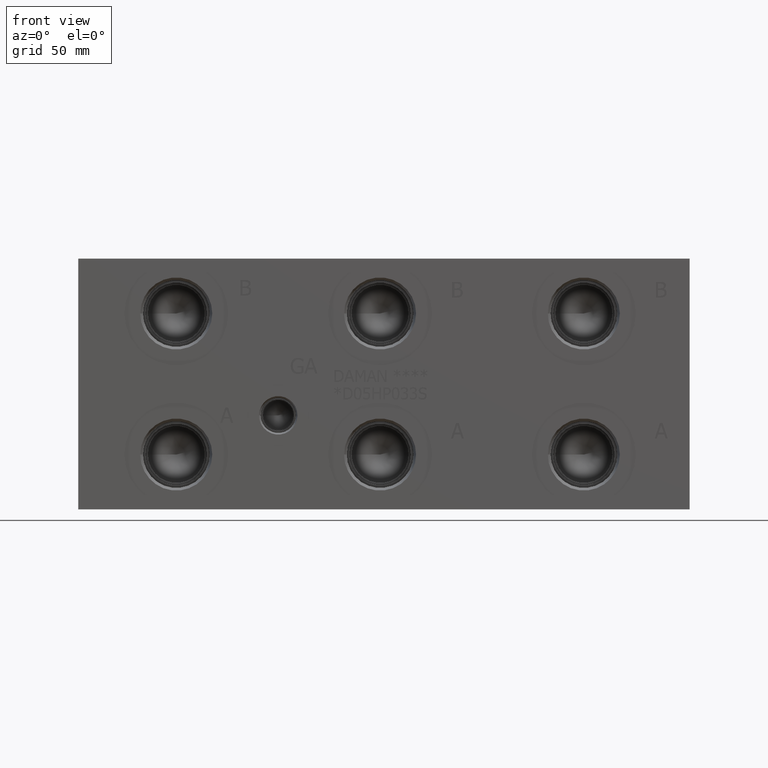
[diagram: clean part render]
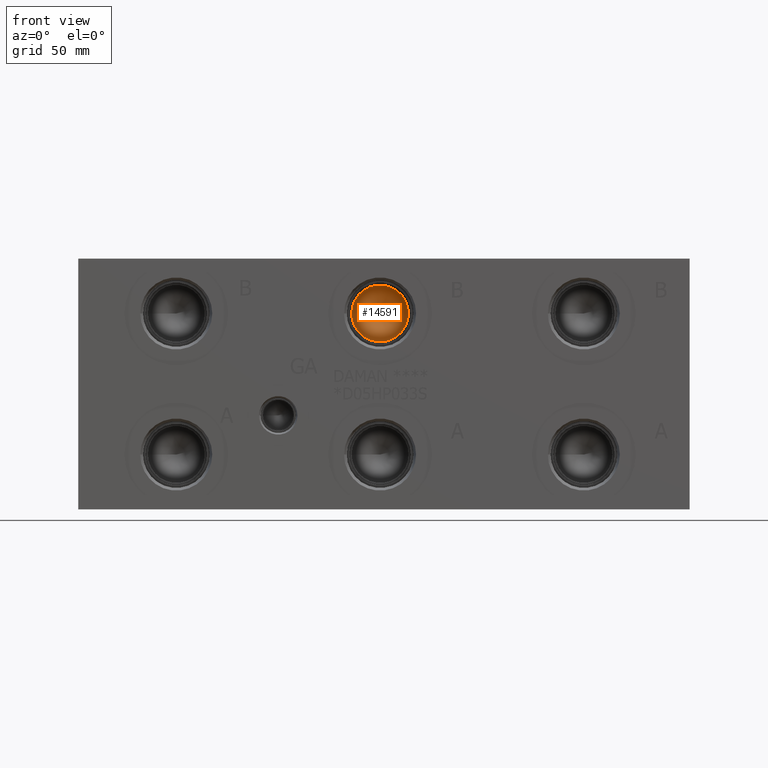
[diagram: same view with one face highlighted and labeled with its STEP entity id]
A machine part, front view. The second image highlights one B-rep face of the part: STEP entity #14591.
In plain terms, the highlighted conical surface has half-angle 60 deg.
Its self-contained STEP definition (entity closure, byte-faithful):
#49=CONICAL_SURFACE('',#15359,5.7531,1.0471975511966);
#554=CIRCLE('',#15360,11.5062);
#555=CIRCLE('',#15361,11.5062);
#1890=FACE_OUTER_BOUND('',#2735,.T.);
#2735=EDGE_LOOP('',(#12400,#12401,#12402,#12403));
#4097=LINE('',#24881,#5391);
#5391=VECTOR('',#18142,5.7531);
#6674=VERTEX_POINT('',#24877);
#6675=VERTEX_POINT('',#24878);
#6676=VERTEX_POINT('',#24880);
#8647=EDGE_CURVE('',#6674,#6675,#554,.T.);
#8648=EDGE_CURVE('',#6675,#6676,#4097,.T.);
#8649=EDGE_CURVE('',#6675,#6674,#555,.T.);
#12400=ORIENTED_EDGE('',*,*,#8647,.T.);
#12401=ORIENTED_EDGE('',*,*,#8648,.T.);
#12402=ORIENTED_EDGE('',*,*,#8648,.F.);
#12403=ORIENTED_EDGE('',*,*,#8649,.T.);
#14591=ADVANCED_FACE('',(#1890),#49,.F.);
#15359=AXIS2_PLACEMENT_3D('',#24876,#18138,#18139);
#15360=AXIS2_PLACEMENT_3D('',#24879,#18140,#18141);
#15361=AXIS2_PLACEMENT_3D('',#24882,#18143,#18144);
#18138=DIRECTION('center_axis',(0.,-1.,0.));
#18139=DIRECTION('ref_axis',(1.,0.,0.));
#18140=DIRECTION('center_axis',(0.,-1.,0.));
#18141=DIRECTION('ref_axis',(1.,0.,0.));
#18142=DIRECTION('',(0.866025403784439,0.5,1.06057523872491E-16));
#18143=DIRECTION('center_axis',(0.,-1.,0.));
#18144=DIRECTION('ref_axis',(1.,0.,0.));
#24876=CARTESIAN_POINT('Origin',(122.2248,34.1787738336748,79.375));
#24877=CARTESIAN_POINT('',(133.731,30.85722,79.375));
#24878=CARTESIAN_POINT('',(110.7186,30.85722,79.375));
#24879=CARTESIAN_POINT('Origin',(122.2248,30.85722,79.375));
#24880=CARTESIAN_POINT('',(122.2248,37.5003276673497,79.375));
#24881=CARTESIAN_POINT('',(116.4717,34.1787738336748,79.375));
#24882=CARTESIAN_POINT('Origin',(122.2248,30.85722,79.375));